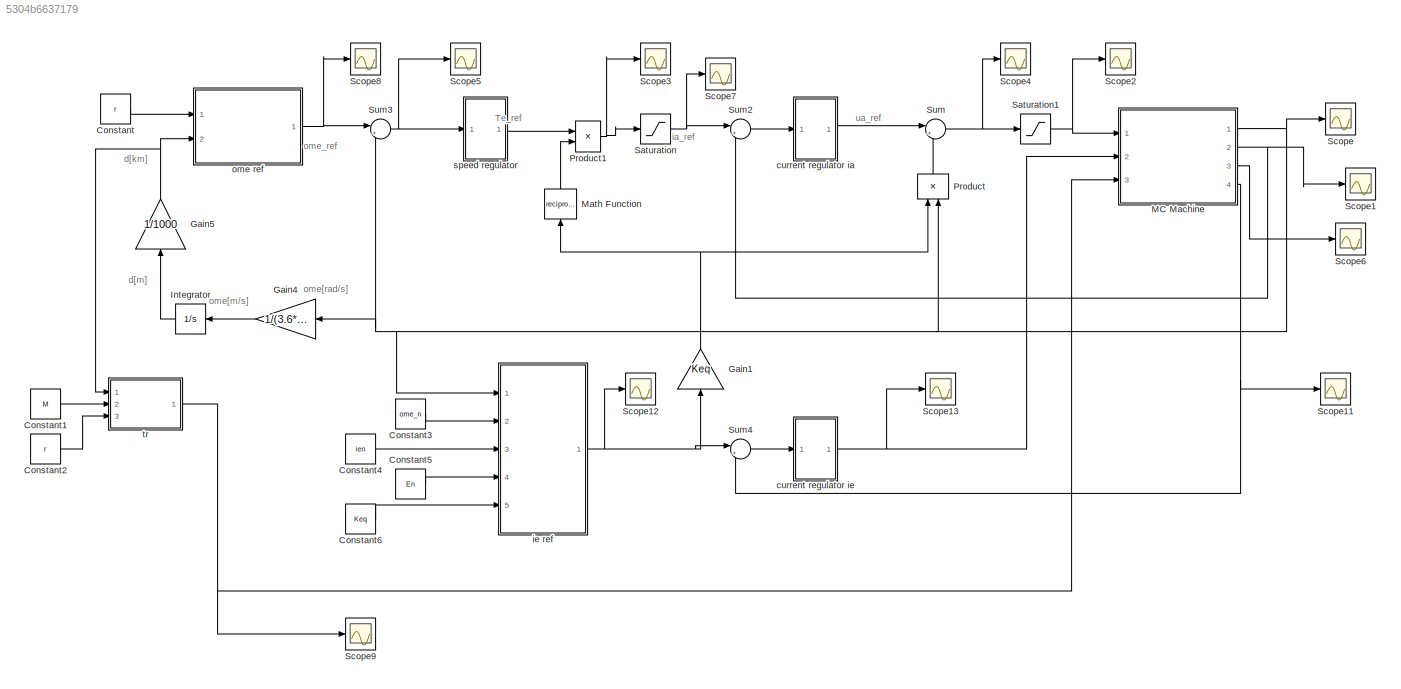
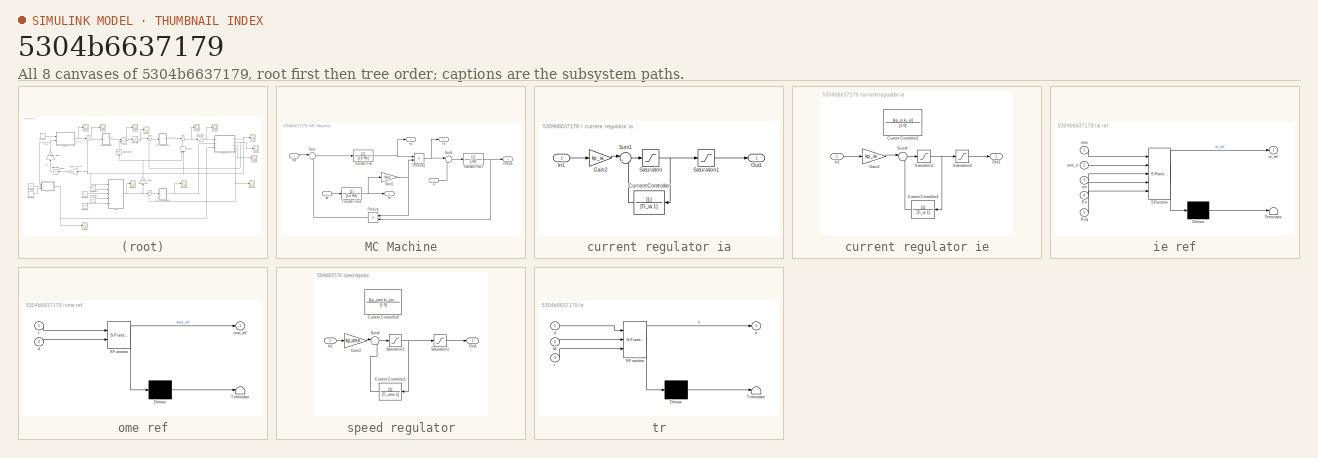
[diagram: thumbnail index - all 8 canvases of the model, root first then tree order]
MODEL slx_5304b6637179
KIND model
CONFIG AbsTol = auto
CONFIG EnableMultiTasking = off
CONFIG FixedStep = auto
CONFIG InitFcn = data898708
CONFIG MaxStep = auto
CONFIG MinStep = auto
CONFIG RelTol = 0.6
CONFIG SampleTimeConstraint = Unconstrained
CONFIG Solver = VariableStepAuto
CONFIG SolverName = VariableStepAuto
CONFIG StartTime = 0.0
CONFIG StopTime = 800
BLOCK [Constant] Constant
  Value = r
BLOCK [Constant] Constant1
  Value = M
BLOCK [Constant] Constant2
  Value = r
BLOCK [Constant] Constant3
  Value = ome_n
BLOCK [Constant] Constant4
  Value = ien
BLOCK [Constant] Constant5
  Value = En
BLOCK [Constant] Constant6
  Value = Keq
BLOCK [Gain] Gain1
  Gain = Keq
  OutDataTypeStr = Inherit: Inherit via internal rule
  ParamDataTypeStr = Inherit: Inherit via internal rule
  SaturateOnIntegerOverflow = off
BLOCK [Gain] Gain4
  Gain = 1/(3.6*r)
  OutDataTypeStr = Inherit: Inherit via internal rule
  ParamDataTypeStr = Inherit: Inherit via internal rule
  SaturateOnIntegerOverflow = off
BLOCK [Gain] Gain5
  Gain = 1/1000
  OutDataTypeStr = Inherit: Inherit via internal rule
  ParamDataTypeStr = Inherit: Inherit via internal rule
  SaturateOnIntegerOverflow = off
BLOCK [Integrator] Integrator
  Ports = [1, 1]
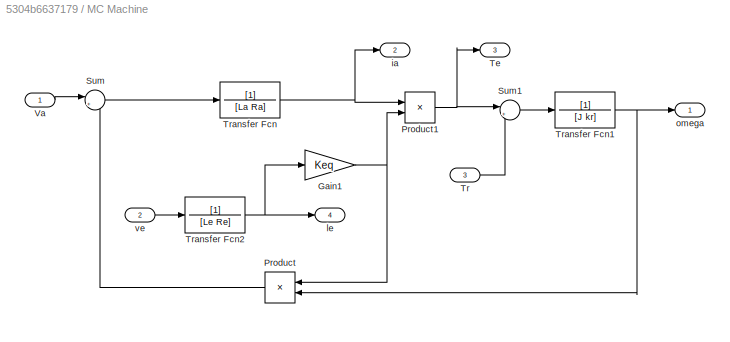
BLOCK [SubSystem] MC Machine
  Ports = [3, 4]
  RequestExecContextInheritance = off
  Variant = off
BLOCK [Gain] MC Machine/Gain1
  Gain = Keq
  OutDataTypeStr = Inherit: Inherit via internal rule
  ParamDataTypeStr = Inherit: Inherit via internal rule
  SaturateOnIntegerOverflow = off
BLOCK [Product] MC Machine/Product
  InputSameDT = off
  OutDataTypeStr = Inherit: Inherit via internal rule
  Ports = [2, 1]
  RndMeth = Floor
  SaturateOnIntegerOverflow = off
BLOCK [Product] MC Machine/Product1
  InputSameDT = off
  OutDataTypeStr = Inherit: Inherit via internal rule
  Ports = [2, 1]
  RndMeth = Floor
  SaturateOnIntegerOverflow = off
BLOCK [Sum] MC Machine/Sum
  IconShape = round
  InputSameDT = off
  Inputs = |+-
  OutDataTypeStr = Inherit: Inherit via internal rule
  Ports = [2, 1]
  SaturateOnIntegerOverflow = off
BLOCK [Sum] MC Machine/Sum1
  IconShape = round
  InputSameDT = off
  Inputs = |+-
  OutDataTypeStr = Inherit: Inherit via internal rule
  Ports = [2, 1]
  SaturateOnIntegerOverflow = off
BLOCK [Outport] MC Machine/Te
  IconDisplay = Port number
  Port = 3
BLOCK [Inport] MC Machine/Tr
  IconDisplay = Port number
  Port = 3
BLOCK [TransferFcn] MC Machine/Transfer Fcn
  Denominator = [La Ra]
BLOCK [TransferFcn] MC Machine/Transfer Fcn1
  Denominator = [J kr]
BLOCK [TransferFcn] MC Machine/Transfer Fcn2
  Denominator = [Le Re]
BLOCK [Inport] MC Machine/Va
  IconDisplay = Port number
BLOCK [Outport] MC Machine/ia
  IconDisplay = Port number
  Port = 2
BLOCK [Outport] MC Machine/le
  IconDisplay = Port number
  Port = 4
BLOCK [Outport] MC Machine/omega
  IconDisplay = Port number
BLOCK [Inport] MC Machine/ve
  IconDisplay = Port number
  Port = 2
BLOCK [Math] Math Function
  Operator = reciprocal
  Ports = [1, 1]
BLOCK [Product] Product
  InputSameDT = off
  OutDataTypeStr = Inherit: Inherit via internal rule
  Ports = [2, 1]
  RndMeth = Floor
  SaturateOnIntegerOverflow = off
BLOCK [Product] Product1
  InputSameDT = off
  OutDataTypeStr = Inherit: Inherit via internal rule
  Ports = [2, 1]
  RndMeth = Floor
  SaturateOnIntegerOverflow = off
BLOCK [Saturate] Saturation
  InputPortMap = u0
  LowerLimit = 0
  Ports = [1, 1]
  UpperLimit = 713
BLOCK [Saturate] Saturation1
  InputPortMap = u0
  Ports = [1, 1]
  UpperLimit = 600
BLOCK [Scope] Scope
  NumInputPorts = 1
  Ports = [1]
  ScopeSpecificationString = Simulink.scopes.TimeScopeBlockCfg('CurrentConfiguration', extmgr.ConfigurationSet(extmgr.Configuration('Core','General UI',true),extmgr.Configuration('Core','Source UI',true),extmgr.Configuration('Sources','WiredSimulink',true),extmgr.Configuration('Visuals','Time Domain',true,'SerializedDisplays',{struct('MinYLimReal','-67.72803','MaxYLimReal','609.55229','YLabelReal','','MinYLimMag','0.00000','M...<+1417ch>
BLOCK [Scope] Scope1
  NumInputPorts = 1
  Ports = [1]
  ScopeSpecificationString = Simulink.scopes.TimeScopeBlockCfg('CurrentConfiguration', extmgr.ConfigurationSet(extmgr.Configuration('Core','General UI',true),extmgr.Configuration('Core','Source UI',true),extmgr.Configuration('Sources','WiredSimulink',true,'DataLoggingVariableName','ScopeData1'),extmgr.Configuration('Visuals','Time Domain',true,'SerializedDisplays',{struct('MinYLimReal','-914.99657','MaxYLimReal','990.45654','...<+1414ch>
BLOCK [Scope] Scope11
  NumInputPorts = 1
  Ports = [1]
  ScopeSpecificationString = Simulink.scopes.TimeScopeBlockCfg('CurrentConfiguration', extmgr.ConfigurationSet(extmgr.Configuration('Core','General UI',true),extmgr.Configuration('Core','Source UI',true),extmgr.Configuration('Sources','WiredSimulink',true,'DataLoggingVariableName','ScopeData1','DataLoggingLimitDataPoints',true,'DataLoggingSaveFormat','Array','DataLoggingDecimation','1','DataLoggingDecimateData',true),extmgr.C...<+1525ch>
BLOCK [Scope] Scope12
  NumInputPorts = 1
  Ports = [1]
  ScopeSpecificationString = Simulink.scopes.TimeScopeBlockCfg('CurrentConfiguration', extmgr.ConfigurationSet(extmgr.Configuration('Core','General UI',true),extmgr.Configuration('Core','Source UI',true),extmgr.Configuration('Sources','WiredSimulink',true,'DataLoggingVariableName','ScopeData2'),extmgr.Configuration('Visuals','Time Domain',true,'SerializedDisplays',{struct('MinYLimReal','0.97171','MaxYLimReal','1.00314','YLabe...<+1382ch>
BLOCK [Scope] Scope13
  NumInputPorts = 1
  Ports = [1]
  ScopeSpecificationString = Simulink.scopes.TimeScopeBlockCfg('CurrentConfiguration', extmgr.ConfigurationSet(extmgr.Configuration('Core','General UI',true),extmgr.Configuration('Core','Source UI',true),extmgr.Configuration('Sources','WiredSimulink',true,'DataLoggingVariableName','ScopeData3'),extmgr.Configuration('Visuals','Time Domain',true,'SerializedDisplays',{struct('MinYLimReal','119.9999999999981','MaxYLimReal','120.0...<+1476ch>
BLOCK [Scope] Scope2
  NumInputPorts = 1
  Ports = [1]
  ScopeSpecificationString = Simulink.scopes.TimeScopeBlockCfg('CurrentConfiguration', extmgr.ConfigurationSet(extmgr.Configuration('Core','General UI',true),extmgr.Configuration('Core','Source UI',true),extmgr.Configuration('Sources','WiredSimulink',true,'DataLoggingVariableName','ScopeData2'),extmgr.Configuration('Visuals','Time Domain',true,'SerializedDisplays',{struct('MinYLimReal','-41.56938','MaxYLimReal','671.28549','Y...<+1409ch>
BLOCK [Scope] Scope3
  NumInputPorts = 1
  Ports = [1]
  ScopeSpecificationString = Simulink.scopes.TimeScopeBlockCfg('CurrentConfiguration', extmgr.ConfigurationSet(extmgr.Configuration('Core','General UI',true),extmgr.Configuration('Core','Source UI',true),extmgr.Configuration('Sources','WiredSimulink',true,'DataLoggingVariableName','ScopeData3'),extmgr.Configuration('Visuals','Time Domain',true,'SerializedDisplays',{struct('MinYLimReal','-60.58345','MaxYLimReal','798.95372','Y...<+1406ch>
BLOCK [Scope] Scope4
  NumInputPorts = 1
  Ports = [1]
  ScopeSpecificationString = Simulink.scopes.TimeScopeBlockCfg('CurrentConfiguration', extmgr.ConfigurationSet(extmgr.Configuration('Core','General UI',true),extmgr.Configuration('Core','Source UI',true),extmgr.Configuration('Sources','WiredSimulink',true,'DataLoggingVariableName','ScopeData4'),extmgr.Configuration('Visuals','Time Domain',true,'SerializedDisplays',{struct('MinYLimReal','-12.59702','MaxYLimReal','662.81793','Y...<+1400ch>
BLOCK [Scope] Scope5
  NumInputPorts = 1
  Ports = [1]
  ScopeSpecificationString = Simulink.scopes.TimeScopeBlockCfg('CurrentConfiguration', extmgr.ConfigurationSet(extmgr.Configuration('Core','General UI',true),extmgr.Configuration('Core','Source UI',true),extmgr.Configuration('Sources','WiredSimulink',true,'DataLoggingVariableName','ScopeData5'),extmgr.Configuration('Visuals','Time Domain',true,'SerializedDisplays',{struct('MinYLimReal','-228.95829','MaxYLimReal','228.95833','...<+1405ch>
BLOCK [Scope] Scope6
  NumInputPorts = 1
  Ports = [1]
  ScopeSpecificationString = Simulink.scopes.TimeScopeBlockCfg('CurrentConfiguration', extmgr.ConfigurationSet(extmgr.Configuration('Core','General UI',true),extmgr.Configuration('Core','Source UI',true),extmgr.Configuration('Sources','WiredSimulink',true,'DataLoggingVariableName','ScopeData1'),extmgr.Configuration('Visuals','Time Domain',true,'SerializedDisplays',{struct('MinYLimReal','-178.64986','MaxYLimReal','1463.47157',...<+1417ch>
BLOCK [Scope] Scope7
  NumInputPorts = 1
  Ports = [1]
  ScopeSpecificationString = Simulink.scopes.TimeScopeBlockCfg('CurrentConfiguration', extmgr.ConfigurationSet(extmgr.Configuration('Core','General UI',true),extmgr.Configuration('Core','Source UI',true),extmgr.Configuration('Sources','WiredSimulink',true,'DataLoggingVariableName','ScopeData1'),extmgr.Configuration('Visuals','Time Domain',true,'SerializedDisplays',{struct('MinYLimReal','-60.58345','MaxYLimReal','798.95372','Y...<+1408ch>
BLOCK [Scope] Scope8
  NumInputPorts = 1
  Ports = [1]
  ScopeSpecificationString = Simulink.scopes.TimeScopeBlockCfg('CurrentConfiguration', extmgr.ConfigurationSet(extmgr.Configuration('Core','General UI',true),extmgr.Configuration('Core','Source UI',true),extmgr.Configuration('Sources','WiredSimulink',true,'DataLoggingVariableName','ScopeData3'),extmgr.Configuration('Visuals','Time Domain',true,'SerializedDisplays',{struct('MinYLimReal','-49.0625','MaxYLimReal','441.5625','YLa...<+1399ch>
BLOCK [Scope] Scope9
  NumInputPorts = 1
  Ports = [1]
  ScopeSpecificationString = Simulink.scopes.TimeScopeBlockCfg('CurrentConfiguration', extmgr.ConfigurationSet(extmgr.Configuration('Core','General UI',true),extmgr.Configuration('Core','Source UI',true),extmgr.Configuration('Sources','WiredSimulink',true,'DataLoggingVariableName','ScopeData1'),extmgr.Configuration('Visuals','Time Domain',true,'SerializedDisplays',{struct('MinYLimReal','-30.42994','MaxYLimReal','30.42994','YL...<+1386ch>
BLOCK [Sum] Sum
  IconShape = round
  InputSameDT = off
  Inputs = |++
  OutDataTypeStr = Inherit: Inherit via internal rule
  Ports = [2, 1]
  SaturateOnIntegerOverflow = off
BLOCK [Sum] Sum2
  IconShape = round
  InputSameDT = off
  Inputs = |+-
  OutDataTypeStr = Inherit: Inherit via internal rule
  Ports = [2, 1]
  SaturateOnIntegerOverflow = off
BLOCK [Sum] Sum3
  IconShape = round
  InputSameDT = off
  Inputs = |+-
  OutDataTypeStr = Inherit: Inherit via internal rule
  Ports = [2, 1]
  SaturateOnIntegerOverflow = off
BLOCK [Sum] Sum4
  IconShape = round
  InputSameDT = off
  Inputs = |+-
  OutDataTypeStr = Inherit: Inherit via internal rule
  Ports = [2, 1]
  SaturateOnIntegerOverflow = off
BLOCK [SubSystem] current regulator ia
  Ports = [1, 1]
  RequestExecContextInheritance = off
  Variant = off
BLOCK [TransferFcn] current regulator ia/Current Controller
  Denominator = [Ti_ia 1]
BLOCK [Gain] current regulator ia/Gain2
  Gain = kp_ia
  OutDataTypeStr = Inherit: Inherit via internal rule
  ParamDataTypeStr = Inherit: Inherit via internal rule
  SaturateOnIntegerOverflow = off
BLOCK [Inport] current regulator ia/In1
  IconDisplay = Port number
BLOCK [Outport] current regulator ia/Out1
  IconDisplay = Port number
BLOCK [Saturate] current regulator ia/Saturation
  InputPortMap = u0
  Ports = [1, 1]
  UpperLimit = 600
BLOCK [Saturate] current regulator ia/Saturation1
  InputPortMap = u0
  Ports = [1, 1]
  UpperLimit = 600
BLOCK [Sum] current regulator ia/Sum1
  IconShape = round
  InputSameDT = off
  Inputs = |++
  OutDataTypeStr = Inherit: Inherit via internal rule
  Ports = [2, 1]
  SaturateOnIntegerOverflow = off
BLOCK [SubSystem] current regulator ie
  Ports = [1, 1]
  RequestExecContextInheritance = off
  Variant = off
BLOCK [TransferFcn] current regulator ie/Current Controller1
  Denominator = [Ti_ie 1]
BLOCK [TransferFcn] current regulator ie/Current Controller2
  Denominator = [1 0]
  Numerator = [kp_ie ki_ie]
BLOCK [Gain] current regulator ie/Gain3
  Gain = kp_ie
  OutDataTypeStr = Inherit: Inherit via internal rule
  ParamDataTypeStr = Inherit: Inherit via internal rule
  SaturateOnIntegerOverflow = off
BLOCK [Inport] current regulator ie/In1
  IconDisplay = Port number
BLOCK [Outport] current regulator ie/Out1
  IconDisplay = Port number
BLOCK [Saturate] current regulator ie/Saturation1
  InputPortMap = u0
  LowerLimit = 0
  Ports = [1, 1]
  UpperLimit = 120
BLOCK [Saturate] current regulator ie/Saturation2
  InputPortMap = u0
  LowerLimit = 0
  Ports = [1, 1]
  UpperLimit = 120
BLOCK [Sum] current regulator ie/Sum4
  IconShape = round
  InputSameDT = off
  Inputs = |++
  OutDataTypeStr = Inherit: Inherit via internal rule
  Ports = [2, 1]
  SaturateOnIntegerOverflow = off
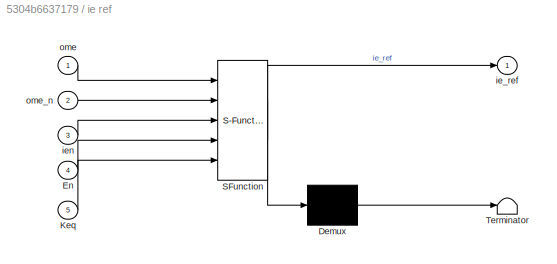
BLOCK [SubSystem] ie ref
  ErrorFcn = Stateflow.Translate.translate
  PermitHierarchicalResolution = ExplicitOnly
  Ports = [5, 1]
  RequestExecContextInheritance = off
  SFBlockType = MATLAB Function
  TreatAsAtomicUnit = on
  Variant = off
BLOCK [Demux] ie ref/ Demux 
  Outputs = 1
  Ports = [1, 1]
BLOCK [S-Function] ie ref/ SFunction 
  EnableBusSupport = on
  FunctionName = sf_sfun
  PortCounts = [5 2]
  Ports = [5, 2]
  SFcnIsStateOwnerBlock = off
  SFunctionDeploymentMode = off
  Tag = Stateflow S-Function plant898708 1
BLOCK [Terminator] ie ref/ Terminator 
BLOCK [Inport] ie ref/En
  IconDisplay = Port number
  Port = 4
BLOCK [Inport] ie ref/Keq
  IconDisplay = Port number
  Port = 5
BLOCK [Outport] ie ref/ie_ref
  IconDisplay = Port number
BLOCK [Inport] ie ref/ien
  IconDisplay = Port number
  Port = 3
BLOCK [Inport] ie ref/ome
  IconDisplay = Port number
BLOCK [Inport] ie ref/ome_n
  IconDisplay = Port number
  Port = 2
BLOCK [SubSystem] ome ref
  ErrorFcn = Stateflow.Translate.translate
  PermitHierarchicalResolution = ExplicitOnly
  Ports = [2, 1]
  RequestExecContextInheritance = off
  SFBlockType = MATLAB Function
  TreatAsAtomicUnit = on
  Variant = off
BLOCK [Demux] ome ref/ Demux 
  Outputs = 1
  Ports = [1, 1]
BLOCK [S-Function] ome ref/ SFunction 
  EnableBusSupport = on
  FunctionName = sf_sfun
  PortCounts = [2 2]
  Ports = [2, 2]
  SFcnIsStateOwnerBlock = off
  SFunctionDeploymentMode = off
  Tag = Stateflow S-Function plant898708 2
BLOCK [Terminator] ome ref/ Terminator 
BLOCK [Inport] ome ref/d
  IconDisplay = Port number
  Port = 2
BLOCK [Outport] ome ref/ome_ref
  IconDisplay = Port number
BLOCK [Inport] ome ref/r
  IconDisplay = Port number
BLOCK [SubSystem] speed regulator
  Ports = [1, 1]
  RequestExecContextInheritance = off
  Variant = off
BLOCK [TransferFcn] speed regulator/Current Controller1
  Denominator = [Ti_ome 1]
BLOCK [TransferFcn] speed regulator/Current Controller2
  Denominator = [1 0]
  Numerator = [kp_ome ki_ome]
BLOCK [Gain] speed regulator/Gain3
  Gain = kp_ome
  OutDataTypeStr = Inherit: Inherit via internal rule
  ParamDataTypeStr = Inherit: Inherit via internal rule
  SaturateOnIntegerOverflow = off
BLOCK [Inport] speed regulator/In1
  IconDisplay = Port number
BLOCK [Outport] speed regulator/Out1
  IconDisplay = Port number
BLOCK [Saturate] speed regulator/Saturation1
  InputPortMap = u0
  LowerLimit = 0
  Ports = [1, 1]
  UpperLimit = 713*Keq
BLOCK [Saturate] speed regulator/Saturation3
  InputPortMap = u0
  LowerLimit = 0
  Ports = [1, 1]
  UpperLimit = 713*Keq
BLOCK [Sum] speed regulator/Sum4
  IconShape = round
  InputSameDT = off
  Inputs = |++
  OutDataTypeStr = Inherit: Inherit via internal rule
  Ports = [2, 1]
  SaturateOnIntegerOverflow = off
BLOCK [SubSystem] tr
  ErrorFcn = Stateflow.Translate.translate
  PermitHierarchicalResolution = ExplicitOnly
  Ports = [3, 1]
  RequestExecContextInheritance = off
  SFBlockType = MATLAB Function
  TreatAsAtomicUnit = on
  Variant = off
BLOCK [Demux] tr/ Demux 
  Outputs = 1
  Ports = [1, 1]
BLOCK [S-Function] tr/ SFunction 
  EnableBusSupport = on
  FunctionName = sf_sfun
  PortCounts = [3 2]
  Ports = [3, 2]
  SFcnIsStateOwnerBlock = off
  SFunctionDeploymentMode = off
  Tag = Stateflow S-Function plant898708 3
BLOCK [Terminator] tr/ Terminator 
BLOCK [Inport] tr/M
  IconDisplay = Port number
  Port = 2
BLOCK [Inport] tr/d
  IconDisplay = Port number
BLOCK [Inport] tr/r
  IconDisplay = Port number
  Port = 3
BLOCK [Outport] tr/tr
  IconDisplay = Port number
ANNOTATION (root): Te_ref
ANNOTATION (root): d[km]
ANNOTATION (root): d[m]
ANNOTATION (root): ia_ref
ANNOTATION (root): ome[m/s]
ANNOTATION (root): ome[rad/s]
ANNOTATION (root): ome_ref
ANNOTATION (root): ua_ref
LINE Constant1:1 -> tr:2
LINE Constant2:1 -> tr:3
LINE Constant3:1 -> ie ref:2
LINE Constant4:1 -> ie ref:3
LINE Constant5:1 -> ie ref:4
LINE Constant6:1 -> ie ref:5
LINE Constant:1 -> ome ref:1
NET Gain1:1 -> Math Function:1, Product:1
LINE Gain4:1 -> Integrator:1
NET Gain5:1 -> ome ref:2, tr:1
LINE Integrator:1 -> Gain5:1
NET MC Machine/Gain1:1 -> MC Machine/Product1:2, MC Machine/Product:1
NET MC Machine/Product1:1 -> MC Machine/Sum1:1, MC Machine/Te:1
LINE MC Machine/Product:1 -> MC Machine/Sum:2
LINE MC Machine/Sum1:1 -> MC Machine/Transfer Fcn1:1
LINE MC Machine/Sum:1 -> MC Machine/Transfer Fcn:1
LINE MC Machine/Tr:1 -> MC Machine/Sum1:2
NET MC Machine/Transfer Fcn1:1 -> MC Machine/Product:2, MC Machine/omega:1
NET MC Machine/Transfer Fcn2:1 -> MC Machine/Gain1:1, MC Machine/le:1
NET MC Machine/Transfer Fcn:1 -> MC Machine/Product1:1, MC Machine/ia:1
LINE MC Machine/Va:1 -> MC Machine/Sum:1
LINE MC Machine/ve:1 -> MC Machine/Transfer Fcn2:1
NET MC Machine:1 -> Gain4:1, Product:2, Scope:1, Sum3:2, ie ref:1
NET MC Machine:2 -> Scope1:1, Sum2:2
LINE MC Machine:3 -> Scope6:1
NET MC Machine:4 -> Scope11:1, Sum4:2
LINE Math Function:1 -> Product1:2
NET Product1:1 -> Saturation:1, Scope3:1
LINE Product:1 -> Sum:2
NET Saturation1:1 -> MC Machine:1, Scope2:1
NET Saturation:1 -> Scope7:1, Sum2:1
LINE Sum2:1 -> current regulator ia:1
NET Sum3:1 -> Scope5:1, speed regulator:1
LINE Sum4:1 -> current regulator ie:1
NET Sum:1 -> Saturation1:1, Scope4:1
LINE current regulator ia/Current Controller:1 -> current regulator ia/Sum1:2
LINE current regulator ia/Gain2:1 -> current regulator ia/Sum1:1
LINE current regulator ia/In1:1 -> current regulator ia/Gain2:1
LINE current regulator ia/Saturation1:1 -> current regulator ia/Out1:1
NET current regulator ia/Saturation:1 -> current regulator ia/Current Controller:1, current regulator ia/Saturation1:1
LINE current regulator ia/Sum1:1 -> current regulator ia/Saturation:1
LINE current regulator ia:1 -> Sum:1
LINE current regulator ie/Current Controller1:1 -> current regulator ie/Sum4:2
LINE current regulator ie/Gain3:1 -> current regulator ie/Sum4:1
LINE current regulator ie/In1:1 -> current regulator ie/Gain3:1
NET current regulator ie/Saturation1:1 -> current regulator ie/Current Controller1:1, current regulator ie/Saturation2:1
LINE current regulator ie/Saturation2:1 -> current regulator ie/Out1:1
LINE current regulator ie/Sum4:1 -> current regulator ie/Saturation1:1
NET current regulator ie:1 -> MC Machine:2, Scope13:1
NET ie ref:1 -> Gain1:1, Scope12:1, Sum4:1
NET ome ref:1 -> Scope8:1, Sum3:1
LINE speed regulator/Current Controller1:1 -> speed regulator/Sum4:2
LINE speed regulator/Gain3:1 -> speed regulator/Sum4:1
LINE speed regulator/In1:1 -> speed regulator/Gain3:1
LINE speed regulator/Saturation1:1 -> speed regulator/Out1:1
NET speed regulator/Saturation3:1 -> speed regulator/Current Controller1:1, speed regulator/Saturation1:1
LINE speed regulator/Sum4:1 -> speed regulator/Saturation3:1
LINE speed regulator:1 -> Product1:1
NET tr:1 -> MC Machine:3, Scope9:1
note: NET lines group one-source signal fan-out (src -> all destinations, sorted); 1:1 wires keep LINE
CHART ie ref states=1 transitions=1
  STATE_LABEL 'eML_blk_kernel()'
  STATE_LABEL 'SCRIPT:\nfunction ie_ref = fcn(ome,ome_n,ien,En,Keq)\nif ome<=ome_n\n    ie_ref=ien;\nelse\n    ie_ref=En/(Keq*ome);\nend\n'
CHART ome ref states=1 transitions=1
  STATE_LABEL 'eML_blk_kernel()'
  STATE_LABEL 'SCRIPT:\nfunction ome_ref = fcn(r,d)\nif d<=1\n    ome_ref=r*35;\nelseif d>1 && d<=4\n    ome_ref=r*60;\nelseif d>4 && d<=6\n    ome_ref=r*75;\nelseif d>6 && d<=9\n    ome_ref=r*60;\nelseif d>9 && d<=10\n    ome_ref=r*35;\nelse \n    ome_ref=0;\nend\n        \n\n\n'
CHART tr states=1 transitions=1
  STATE_LABEL 'eML_blk_kernel()'
  STATE_LABEL 'SCRIPT:\nfunction tr = fcn(d,M,r)\nif d>3 && d<=4\n    tr=M*9.8*0.0005/r;\nelseif d>8 && d<=9\n    tr=-M*9.8*0.0005/r;\nelse\n    tr=0;\nend'
